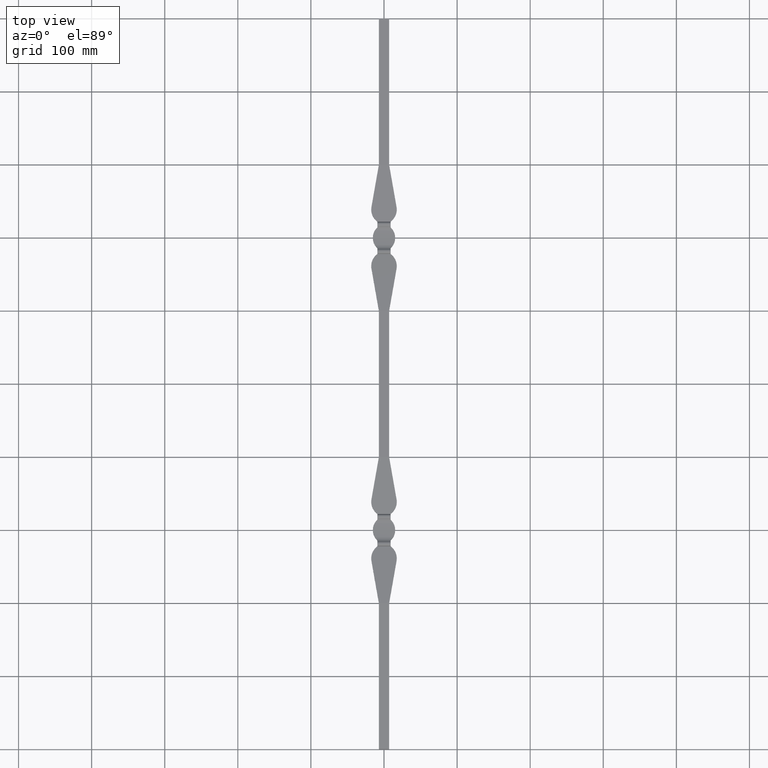
[diagram: clean part render]
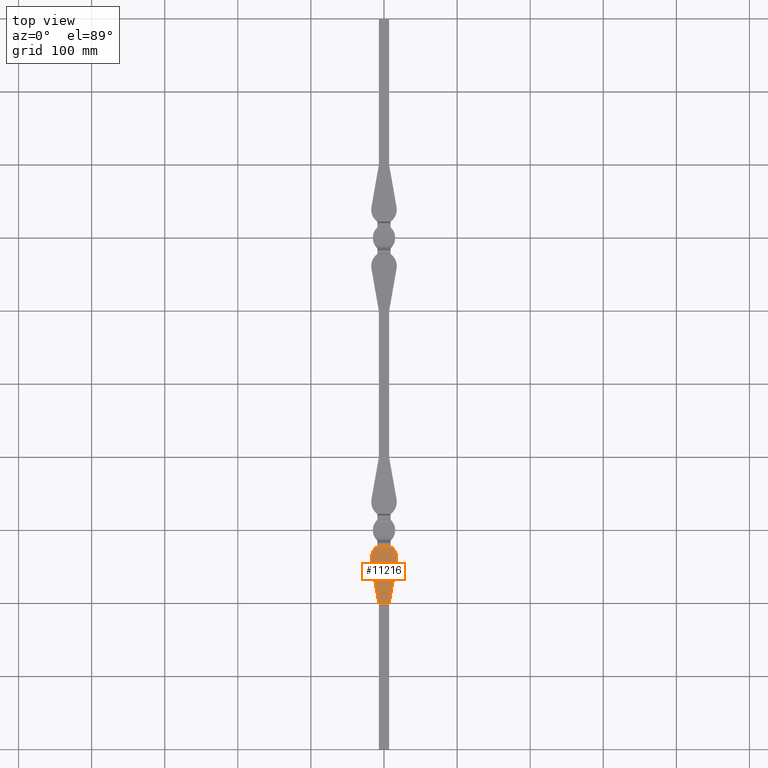
[diagram: same view with one face highlighted and labeled with its STEP entity id]
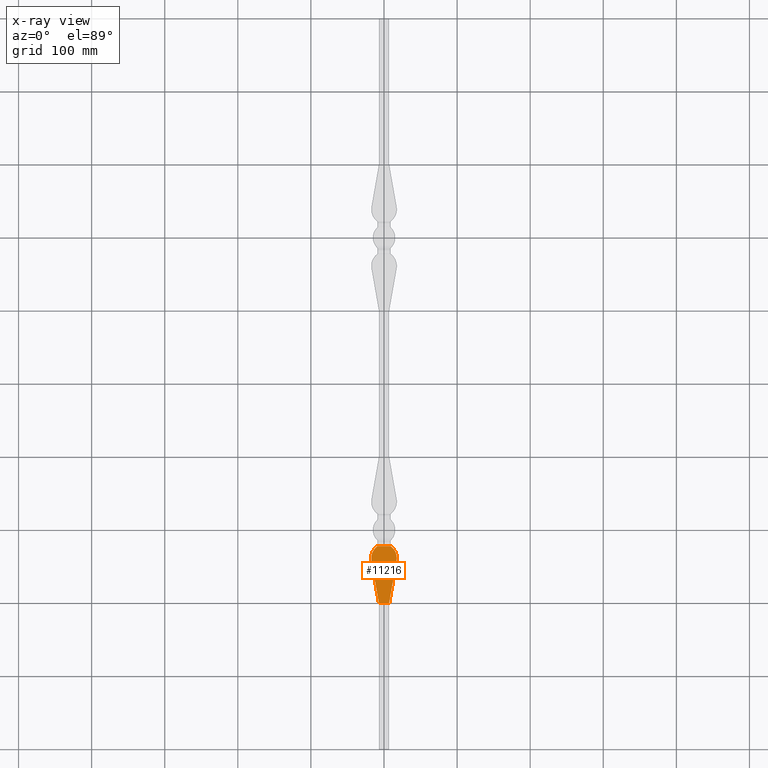
[diagram: x-ray of the same camera — body ghosted, the highlighted face saturated]
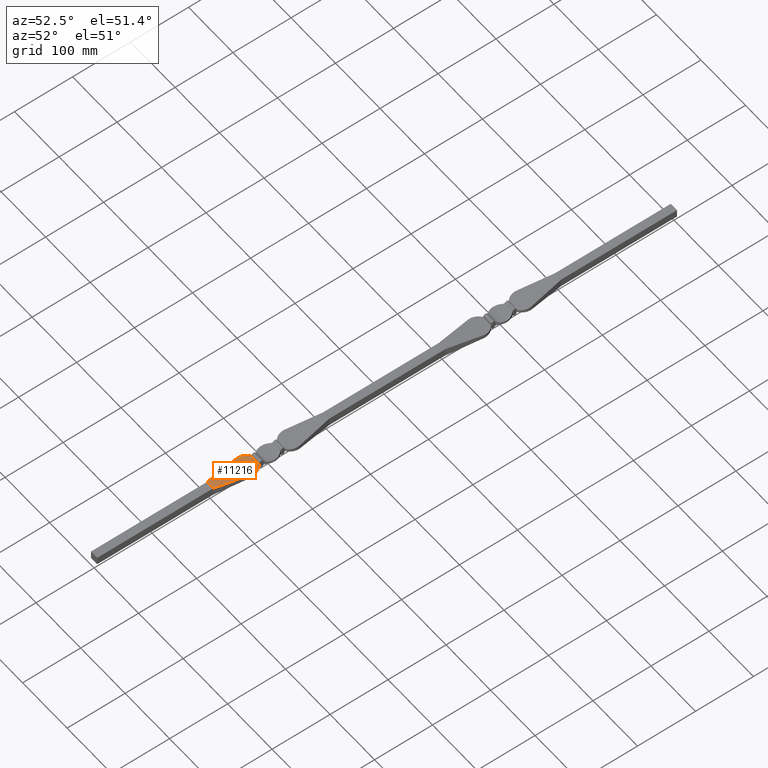
[diagram: same view with one face highlighted and labeled with its STEP entity id]
A machine part, top view. The second image highlights one B-rep face of the part: STEP entity #11216.
The next image is the same camera in x-ray: the body ghosted, the highlighted face saturated — about 0% of this face is hidden behind the body in this view.
A second angle (auxiliary view) of the same face is appended — the face is thin or edge-on in the first view.
In plain terms, the highlighted planar face has unit normal (0, -0.0608, -0.9982).
Its self-contained STEP definition (entity closure, byte-faithful):
#19 = ORIENTED_EDGE ( 'NONE', *, *, #3673, .T. ) ;
#124 = ORIENTED_EDGE ( 'NONE', *, *, #4080, .F. ) ;
#424 = VERTEX_POINT ( 'NONE', #2799 ) ;
#499 = PLANE ( 'NONE',  #5857 ) ;
#592 = VERTEX_POINT ( 'NONE', #8815 ) ;
#742 = LINE ( 'NONE', #10663, #8954 ) ;
#1469 = CARTESIAN_POINT ( 'NONE',  ( 17.19423237648115332, -442.0000000000000000, 3.467948717948717618 ) ) ;
#1493 =( BOUNDED_CURVE ( )  B_SPLINE_CURVE ( 3, ( #2435, #2480, #4579, #1469 ),
 .UNSPECIFIED., .F., .T. ) 
 B_SPLINE_CURVE_WITH_KNOTS ( ( 4, 4 ),
 ( 0.6191101395289030362, 1.744781863033762370 ),
 .UNSPECIFIED. ) 
 CURVE ( )  GEOMETRIC_REPRESENTATION_ITEM ( )  RATIONAL_B_SPLINE_CURVE ( ( 1.000000000000000000, 0.8971635570349777433, 0.8971635570349777433, 1.000000000000000000 ) ) 
 REPRESENTATION_ITEM ( '' )  );
#1539 = CARTESIAN_POINT ( 'NONE',  ( -8.999999999999998224, -422.0000000000000568, 2.250000000000000000 ) ) ;
#1632 = DIRECTION ( 'NONE',  ( 0.000000000000000000, -0.06078482999941201004, -0.9981508926219234690 ) ) ;
#1731 = VECTOR ( 'NONE', #11129, 1000.000000000000000 ) ;
#1781 = ORIENTED_EDGE ( 'NONE', *, *, #13052, .T. ) ;
#1840 = VERTEX_POINT ( 'NONE', #7797 ) ;
#2435 = CARTESIAN_POINT ( 'NONE',  ( 8.999999999999998224, -422.0000000000000568, 2.250000000000000000 ) ) ;
#2480 = CARTESIAN_POINT ( 'NONE',  ( 15.53985880112381146, -426.6600840808087582, 2.533787171587713161 ) ) ;
#2501 = DIRECTION ( 'NONE',  ( 0.000000000000000000, -0.9981508926219234690, 0.06078482999941201004 ) ) ;
#2799 = CARTESIAN_POINT ( 'NONE',  ( 17.19423237648115332, -442.0000000000000000, 3.467948717948717618 ) ) ;
#2887 = VERTEX_POINT ( 'NONE', #6753 ) ;
#3673 = EDGE_CURVE ( 'NONE', #2887, #1840, #11373, .T. ) ;
#4080 = EDGE_CURVE ( 'NONE', #424, #13014, #7838, .T. ) ;
#4579 = CARTESIAN_POINT ( 'NONE',  ( 18.58435472468469740, -434.0909105052561472, 2.986305447435467553 ) ) ;
#4994 =( BOUNDED_CURVE ( )  B_SPLINE_CURVE ( 3, ( #1539, #11266, #5773, #6919 ),
 .UNSPECIFIED., .F., .T. ) 
 B_SPLINE_CURVE_WITH_KNOTS ( ( 4, 4 ),
 ( 0.6191101395289030362, 1.744781863033762370 ),
 .UNSPECIFIED. ) 
 CURVE ( )  GEOMETRIC_REPRESENTATION_ITEM ( )  RATIONAL_B_SPLINE_CURVE ( ( 1.000000000000000000, 0.8971635570349777433, 0.8971635570349777433, 1.000000000000000000 ) ) 
 REPRESENTATION_ITEM ( '' )  );
#5725 = CARTESIAN_POINT ( 'NONE',  ( -17.50000000000000355, -422.0000000000000568, 2.250000000000000000 ) ) ;
#5773 = CARTESIAN_POINT ( 'NONE',  ( -18.58435472468469740, -434.0909105052561472, 2.986305447435467553 ) ) ;
#5857 = AXIS2_PLACEMENT_3D ( 'NONE', #5868, #1632, #2501 ) ;
#5868 = CARTESIAN_POINT ( 'NONE',  ( -17.50000000000000355, -500.0000000000000000, 7.000000000000000000 ) ) ;
#6211 = EDGE_CURVE ( 'NONE', #592, #424, #1493, .T. ) ;
#6282 = ORIENTED_EDGE ( 'NONE', *, *, #7957, .F. ) ;
#6345 = VECTOR ( 'NONE', #7069, 1000.000000000000114 ) ;
#6411 = DIRECTION ( 'NONE',  ( 1.000000000000000000, 0.000000000000000000, 0.000000000000000000 ) ) ;
#6737 = LINE ( 'NONE', #5725, #1731 ) ;
#6753 = CARTESIAN_POINT ( 'NONE',  ( -17.19423237648115332, -442.0000000000000000, 3.467948717948717618 ) ) ;
#6919 = CARTESIAN_POINT ( 'NONE',  ( -17.19423237648115332, -442.0000000000000000, 3.467948717948717618 ) ) ;
#7069 = DIRECTION ( 'NONE',  ( 0.1727985479923806467, -0.9831358962034556503, 0.05987045521751813842 ) ) ;
#7633 = ORIENTED_EDGE ( 'NONE', *, *, #11208, .T. ) ;
#7797 = CARTESIAN_POINT ( 'NONE',  ( -7.000000000000000888, -500.0000000000000000, 7.000000000000000000 ) ) ;
#7838 = LINE ( 'NONE', #13524, #9536 ) ;
#7957 = EDGE_CURVE ( 'NONE', #8504, #592, #6737, .T. ) ;
#8504 = VERTEX_POINT ( 'NONE', #11108 ) ;
#8815 = CARTESIAN_POINT ( 'NONE',  ( 8.999999999999998224, -422.0000000000000568, 2.250000000000000000 ) ) ;
#8954 = VECTOR ( 'NONE', #6411, 1000.000000000000000 ) ;
#9163 = EDGE_LOOP ( 'NONE', ( #7633, #19, #1781, #124, #11614, #6282 ) ) ;
#9536 = VECTOR ( 'NONE', #13619, 1000.000000000000114 ) ;
#10111 = CARTESIAN_POINT ( 'NONE',  ( -7.000000000000000888, -500.0000000000000000, 7.000000000000000000 ) ) ;
#10383 = FACE_OUTER_BOUND ( 'NONE', #9163, .T. ) ;
#10663 = CARTESIAN_POINT ( 'NONE',  ( -7.000000000000000888, -500.0000000000000000, 7.000000000000000000 ) ) ;
#11108 = CARTESIAN_POINT ( 'NONE',  ( -8.999999999999998224, -422.0000000000000568, 2.250000000000000000 ) ) ;
#11129 = DIRECTION ( 'NONE',  ( 1.000000000000000000, 0.000000000000000000, 0.000000000000000000 ) ) ;
#11208 = EDGE_CURVE ( 'NONE', #8504, #2887, #4994, .T. ) ;
#11216 = ADVANCED_FACE ( 'NONE', ( #10383 ), #499, .F. ) ;
#11266 = CARTESIAN_POINT ( 'NONE',  ( -15.53985880112381146, -426.6600840808087582, 2.533787171587713161 ) ) ;
#11373 = LINE ( 'NONE', #10111, #6345 ) ;
#11614 = ORIENTED_EDGE ( 'NONE', *, *, #6211, .F. ) ;
#12870 = CARTESIAN_POINT ( 'NONE',  ( 7.000000000000000888, -500.0000000000000000, 7.000000000000000000 ) ) ;
#13014 = VERTEX_POINT ( 'NONE', #12870 ) ;
#13052 = EDGE_CURVE ( 'NONE', #1840, #13014, #742, .T. ) ;
#13524 = CARTESIAN_POINT ( 'NONE',  ( 7.000000000000000888, -500.0000000000000000, 7.000000000000000000 ) ) ;
#13619 = DIRECTION ( 'NONE',  ( -0.1727985479923806467, -0.9831358962034556503, 0.05987045521751813842 ) ) ;